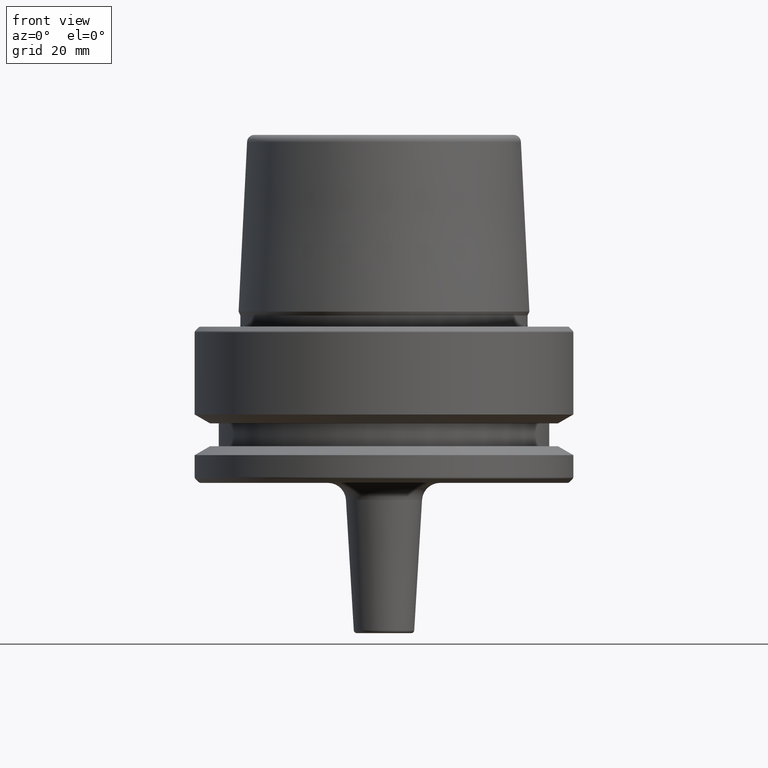
[diagram: clean part render]
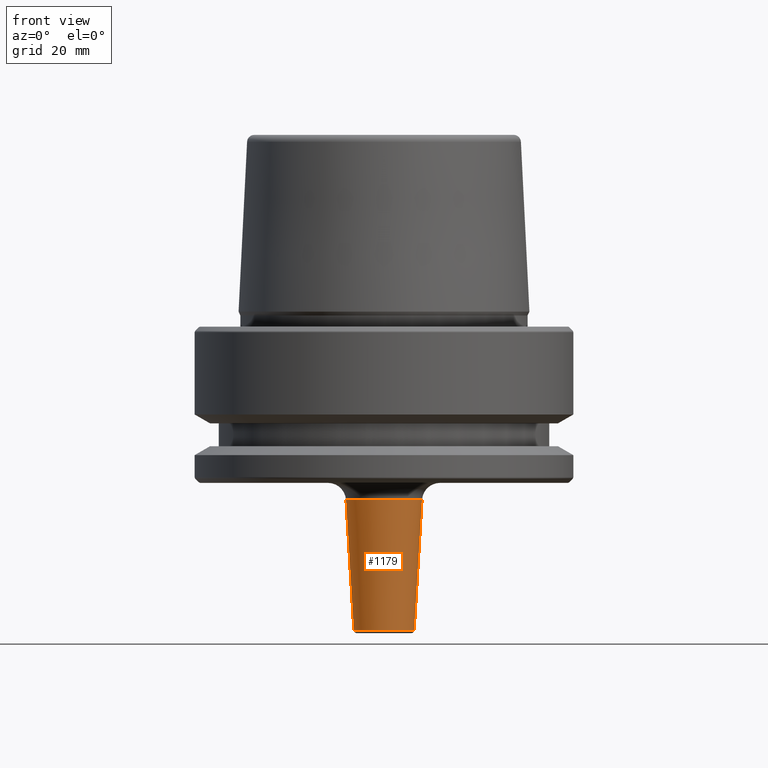
[diagram: same view with one face highlighted and labeled with its STEP entity id]
A machine part, front view. The second image highlights one B-rep face of the part: STEP entity #1179.
In plain terms, the highlighted conical surface has half-angle 3.434 deg.
Its self-contained STEP definition (entity closure, byte-faithful):
#1 = VERTEX_POINT ( 'NONE', #62 ) ;
#35 = CARTESIAN_POINT ( 'NONE',  ( 5.028203231278158800, 0.0000000000000000000, -50.52994614536397900 ) ) ;
#41 = VERTEX_POINT ( 'NONE', #35 ) ;
#62 = CARTESIAN_POINT ( 'NONE',  ( -5.028203231278158800, 6.955371602821243400E-016, -50.52994614536397900 ) ) ;
#95 = LINE ( 'NONE', #170, #322 ) ;
#97 = VERTEX_POINT ( 'NONE', #1098 ) ;
#170 = CARTESIAN_POINT ( 'NONE',  ( -6.499999999999992900, 7.960204194457786600E-016, -26.00000000000000700 ) ) ;
#171 = CARTESIAN_POINT ( 'NONE',  ( 6.330780612331023100, 0.0000000000000000000, -28.82032312781617000 ) ) ;
#206 = ORIENTED_EDGE ( 'NONE', *, *, #831, .T. ) ;
#229 = EDGE_CURVE ( 'NONE', #1141, #97, #437, .T. ) ;
#322 = VECTOR ( 'NONE', #1236, 1000.000000000000000 ) ;
#331 = DIRECTION ( 'NONE',  ( 0.0000000000000000000, 0.0000000000000000000, 1.000000000000000000 ) ) ;
#383 = ORIENTED_EDGE ( 'NONE', *, *, #387, .F. ) ;
#387 = EDGE_CURVE ( 'NONE', #1, #97, #95, .T. ) ;
#428 = LINE ( 'NONE', #1050, #1171 ) ;
#437 = CIRCLE ( 'NONE', #1064, 6.330780612331024800 ) ;
#442 = DIRECTION ( 'NONE',  ( -0.0000000000000000000, -0.0000000000000000000, -1.000000000000000000 ) ) ;
#471 = DIRECTION ( 'NONE',  ( 0.05989229072794660700, 0.0000000000000000000, 0.9982048454657787000 ) ) ;
#491 = CIRCLE ( 'NONE', #1110, 5.028203231278158800 ) ;
#494 = FACE_OUTER_BOUND ( 'NONE', #602, .T. ) ;
#602 = EDGE_LOOP ( 'NONE', ( #383, #206, #1256, #735 ) ) ;
#622 = AXIS2_PLACEMENT_3D ( 'NONE', #848, #747, #1227 ) ;
#714 = DIRECTION ( 'NONE',  ( 1.000000000000000000, 0.0000000000000000000, 0.0000000000000000000 ) ) ;
#722 = CARTESIAN_POINT ( 'NONE',  ( 0.0000000000000000000, 0.0000000000000000000, -28.82032312781617000 ) ) ;
#735 = ORIENTED_EDGE ( 'NONE', *, *, #229, .T. ) ;
#747 = DIRECTION ( 'NONE',  ( 0.0000000000000000000, 0.0000000000000000000, 1.000000000000000000 ) ) ;
#831 = EDGE_CURVE ( 'NONE', #1, #41, #491, .T. ) ;
#848 = CARTESIAN_POINT ( 'NONE',  ( 0.0000000000000000000, 0.0000000000000000000, -26.00000000000000700 ) ) ;
#913 = CARTESIAN_POINT ( 'NONE',  ( 0.0000000000000000000, 0.0000000000000000000, -50.52994614536397900 ) ) ;
#1011 = DIRECTION ( 'NONE',  ( 1.000000000000000000, 0.0000000000000000000, 0.0000000000000000000 ) ) ;
#1050 = CARTESIAN_POINT ( 'NONE',  ( 6.499999999999992900, 0.0000000000000000000, -26.00000000000000700 ) ) ;
#1064 = AXIS2_PLACEMENT_3D ( 'NONE', #722, #442, #714 ) ;
#1098 = CARTESIAN_POINT ( 'NONE',  ( -6.330780612331023100, 7.752970212995308400E-016, -28.82032312781617000 ) ) ;
#1110 = AXIS2_PLACEMENT_3D ( 'NONE', #913, #331, #1011 ) ;
#1141 = VERTEX_POINT ( 'NONE', #171 ) ;
#1171 = VECTOR ( 'NONE', #471, 1000.000000000000000 ) ;
#1179 = ADVANCED_FACE ( 'NONE', ( #494 ), #1203, .T. ) ;
#1203 = CONICAL_SURFACE ( 'NONE', #622, 6.499999999999992900, 0.05992815512120777000 ) ;
#1227 = DIRECTION ( 'NONE',  ( 1.000000000000000000, 0.0000000000000000000, 0.0000000000000000000 ) ) ;
#1236 = DIRECTION ( 'NONE',  ( -0.05989229072794660700, 7.334690213358251100E-018, 0.9982048454657787000 ) ) ;
#1256 = ORIENTED_EDGE ( 'NONE', *, *, #1257, .T. ) ;
#1257 = EDGE_CURVE ( 'NONE', #41, #1141, #428, .T. ) ;